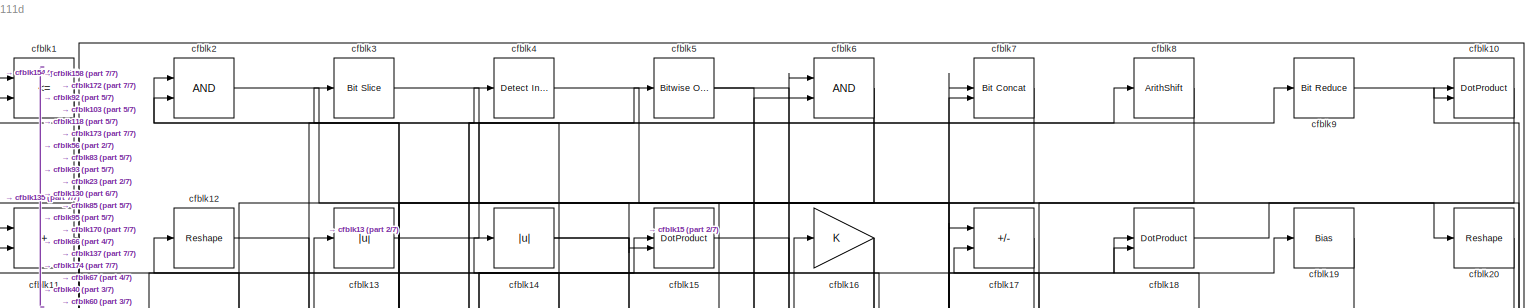
[diagram: root canvas - part 1/7, full width, top band]
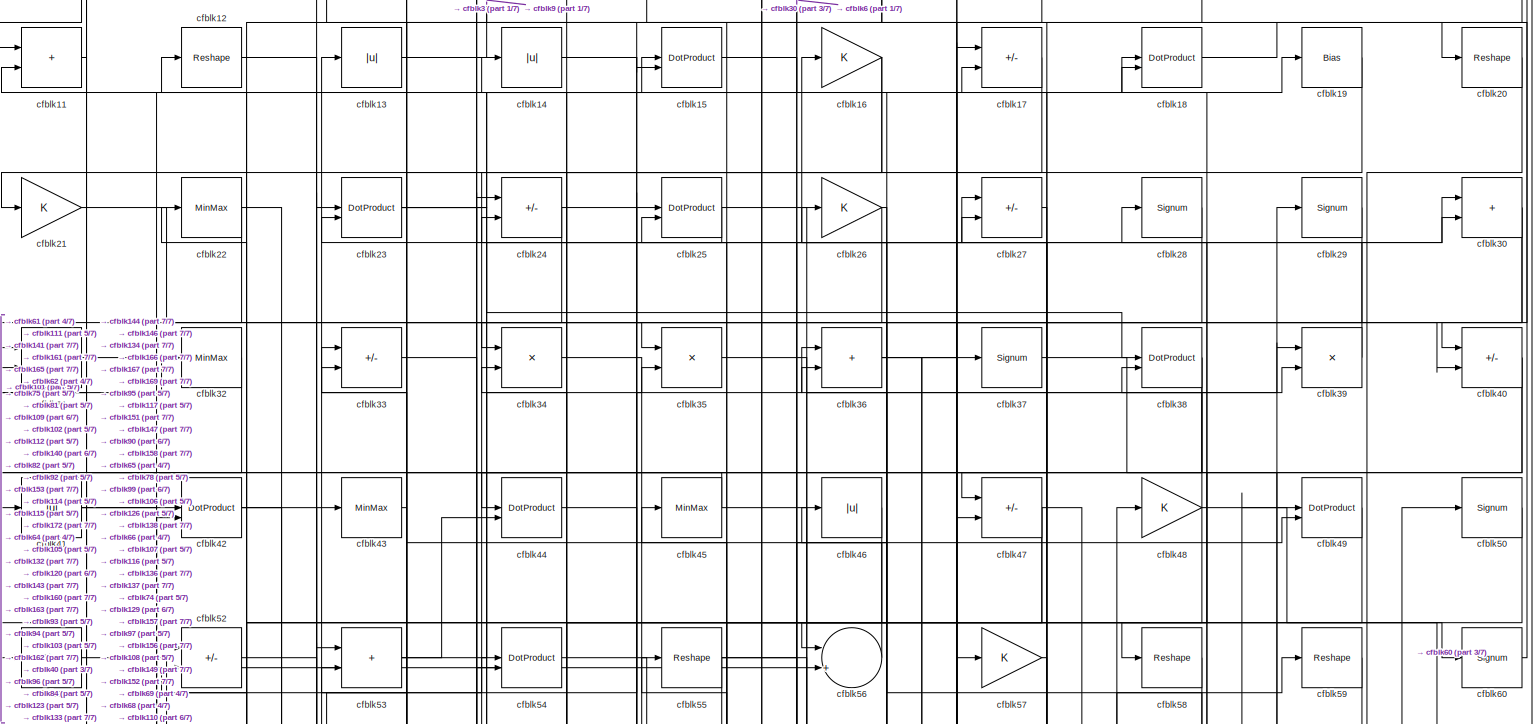
[diagram: root canvas - part 2/7, full width, top band]
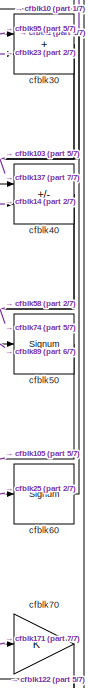
[diagram: root canvas - part 3/7, top right region]
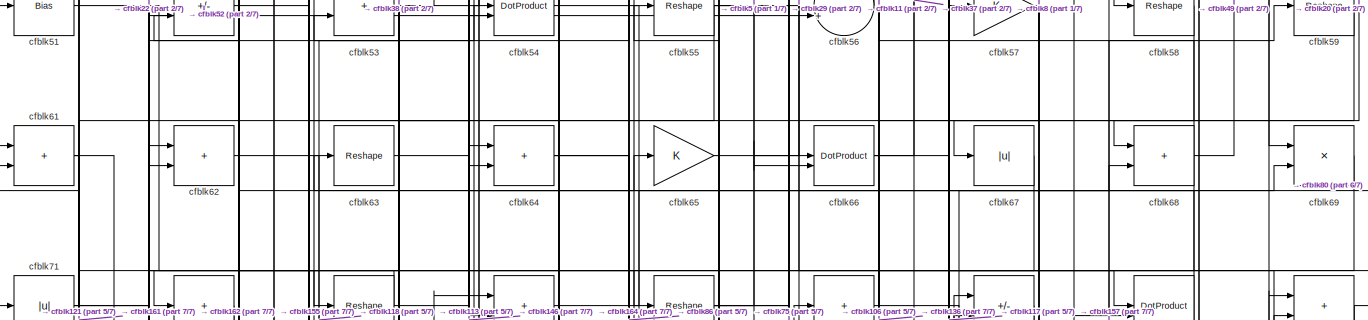
[diagram: root canvas - part 4/7, full width, middle band]
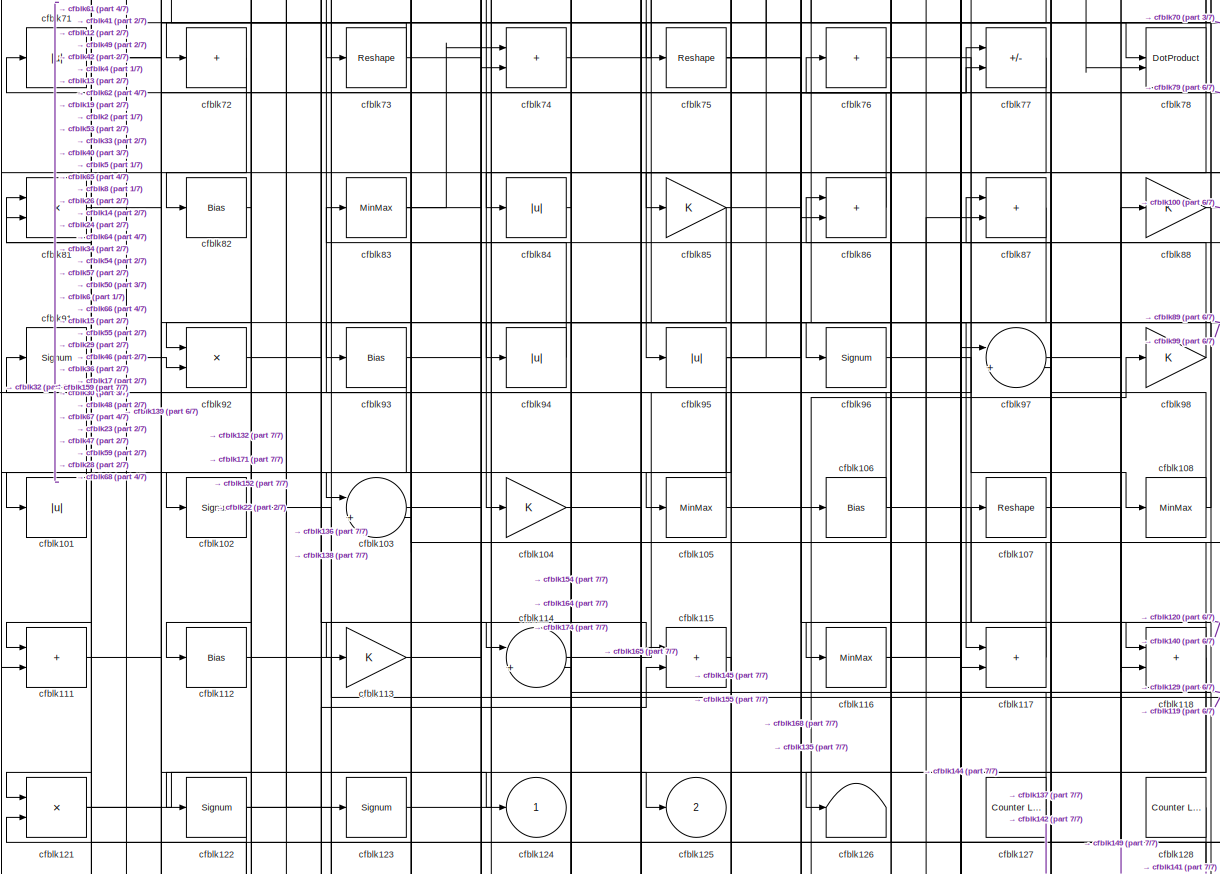
[diagram: root canvas - part 5/7, full width, middle band]
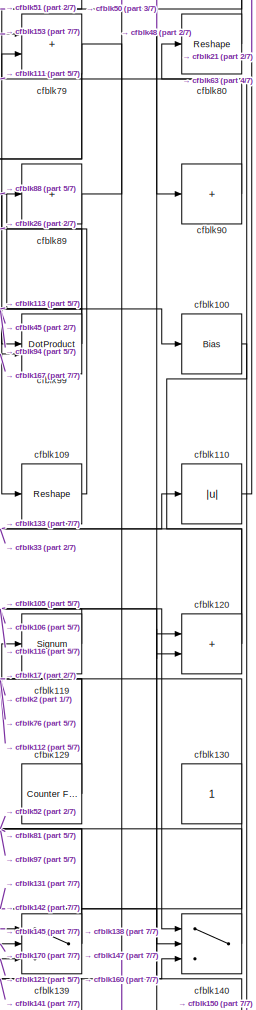
[diagram: root canvas - part 6/7, middle right region]
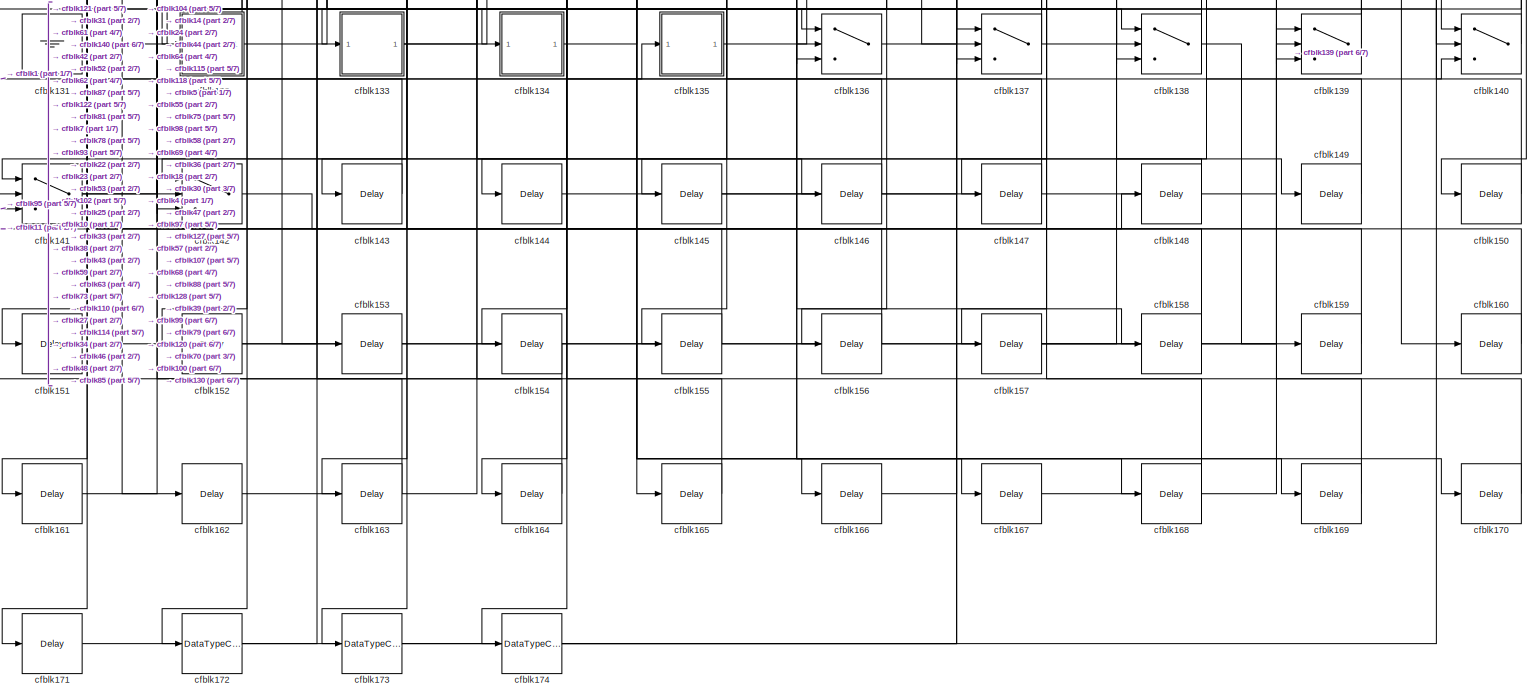
[diagram: root canvas - part 7/7, full width, bottom band]
MODEL slx_808a5f24111d
KIND model
CONFIG AbsTol = auto
CONFIG EnableMultiTasking = off
CONFIG FixedStep = auto
CONFIG MaxStep = auto
CONFIG MinStep = auto
CONFIG RelTol = 1e-3
CONFIG SampleTimeConstraint = Unconstrained
CONFIG SolverName = VariableStepAuto
CONFIG StartTime = 0.0
CONFIG StopTime = 10.0
BLOCK [RelationalOperator] cfblk1
  InputSameDT = off
  Operator = <=
  OutDataTypeStr = boolean
BLOCK [DotProduct] cfblk10
  OutDataTypeStr = Inherit: Inherit via internal rule
BLOCK [Bias] cfblk100
  Bias = 0.0
  SaturateOnIntegerOverflow = off
BLOCK [Abs] cfblk101
  SaturateOnIntegerOverflow = off
BLOCK [Signum] cfblk102
BLOCK [Sum] cfblk103
  Inputs = |++
BLOCK [Gain] cfblk104
BLOCK [MinMax] cfblk105
BLOCK [Bias] cfblk106
  Bias = 0.0
  SaturateOnIntegerOverflow = off
BLOCK [Reshape] cfblk107
BLOCK [MinMax] cfblk108
BLOCK [Reshape] cfblk109
BLOCK [Sum] cfblk11
  IconShape = rectangular
BLOCK [Abs] cfblk110
  SaturateOnIntegerOverflow = off
BLOCK [Sum] cfblk111
  IconShape = rectangular
BLOCK [Bias] cfblk112
  Bias = 0.0
  SaturateOnIntegerOverflow = off
BLOCK [Gain] cfblk113
BLOCK [Sum] cfblk114
  Inputs = |++
BLOCK [Sum] cfblk115
  IconShape = rectangular
BLOCK [MinMax] cfblk116
BLOCK [Sum] cfblk117
  IconShape = rectangular
BLOCK [Sum] cfblk118
  IconShape = rectangular
BLOCK [Signum] cfblk119
BLOCK [Reshape] cfblk12
BLOCK [Sum] cfblk120
  IconShape = rectangular
BLOCK [Product] cfblk121
  Inputs = */
  RndMeth = Zero
  SaturateOnIntegerOverflow = on
BLOCK [Signum] cfblk122
BLOCK [Signum] cfblk123
BLOCK [Outport] cfblk124
  VectorParamsAs1DForOutWhenUnconnected = off
BLOCK [Outport] cfblk125
  Port = 2
  VectorParamsAs1DForOutWhenUnconnected = off
BLOCK [Terminator] cfblk126
BLOCK [Reference] cfblk127  REF=hdlsllib/Sources/Counter
Limited
  SourceBlock = hdlsllib/Sources/Counter\nLimited
  SourceType = Counter Limited
BLOCK [Reference] cfblk128  REF=hdlsllib/Sources/Counter
Limited
  SourceBlock = hdlsllib/Sources/Counter\nLimited
  SourceType = Counter Limited
BLOCK [Reference] cfblk129  REF=hdlsllib/Sources/Counter
Free-Running
  SourceBlock = hdlsllib/Sources/Counter\nFree-Running
  SourceType = Counter Free-Running
BLOCK [Abs] cfblk13
  SaturateOnIntegerOverflow = off
BLOCK [Constant] cfblk130
  SampleTime = -1
BLOCK [Ground] cfblk131
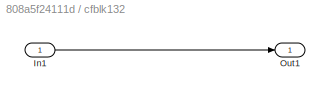
BLOCK [SubSystem] cfblk132
  LibrarySourceBlock = hdlsllib/Ports &\nSubsystems/Subsystem
BLOCK [Inport] cfblk132/In1
BLOCK [Outport] cfblk132/Out1
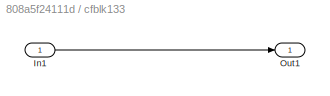
BLOCK [SubSystem] cfblk133
  LibrarySourceBlock = hdlsllib/Ports &\nSubsystems/Subsystem
BLOCK [Inport] cfblk133/In1
BLOCK [Outport] cfblk133/Out1
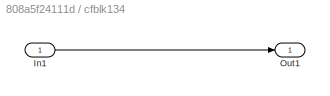
BLOCK [SubSystem] cfblk134
  LibrarySourceBlock = hdlsllib/Ports &\nSubsystems/Subsystem
BLOCK [Inport] cfblk134/In1
BLOCK [Outport] cfblk134/Out1
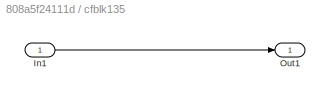
BLOCK [SubSystem] cfblk135
  LibrarySourceBlock = hdlsllib/Ports &\nSubsystems/Subsystem
BLOCK [Inport] cfblk135/In1
BLOCK [Outport] cfblk135/Out1
BLOCK [Switch] cfblk136
  InputSameDT = off
  SaturateOnIntegerOverflow = off
BLOCK [Switch] cfblk137
  InputSameDT = off
  SaturateOnIntegerOverflow = off
BLOCK [Switch] cfblk138
  InputSameDT = off
  SaturateOnIntegerOverflow = off
BLOCK [Switch] cfblk139
  InputSameDT = off
  SaturateOnIntegerOverflow = off
BLOCK [Abs] cfblk14
  SaturateOnIntegerOverflow = off
BLOCK [Switch] cfblk140
  InputSameDT = off
  SaturateOnIntegerOverflow = off
BLOCK [Switch] cfblk141
  InputSameDT = off
  SaturateOnIntegerOverflow = off
BLOCK [Switch] cfblk142
  InputSameDT = off
  SaturateOnIntegerOverflow = off
BLOCK [Delay] cfblk143
  InputPortMap = u0
  SampleTime = 1
BLOCK [Delay] cfblk144
  InputPortMap = u0
  SampleTime = 1
BLOCK [Delay] cfblk145
  InputPortMap = u0
  SampleTime = 1
BLOCK [Delay] cfblk146
  InputPortMap = u0
  SampleTime = 1
BLOCK [Delay] cfblk147
  InputPortMap = u0
  SampleTime = 1
BLOCK [Delay] cfblk148
  InputPortMap = u0
  SampleTime = 1
BLOCK [Delay] cfblk149
  InputPortMap = u0
  SampleTime = 1
BLOCK [DotProduct] cfblk15
  OutDataTypeStr = Inherit: Inherit via internal rule
BLOCK [Delay] cfblk150
  InputPortMap = u0
  SampleTime = 1
BLOCK [Delay] cfblk151
  InputPortMap = u0
  SampleTime = 1
BLOCK [Delay] cfblk152
  InputPortMap = u0
  SampleTime = 1
BLOCK [Delay] cfblk153
  InputPortMap = u0
  SampleTime = 1
BLOCK [Delay] cfblk154
  InputPortMap = u0
  SampleTime = 1
BLOCK [Delay] cfblk155
  InputPortMap = u0
  SampleTime = 1
BLOCK [Delay] cfblk156
  InputPortMap = u0
  SampleTime = 1
BLOCK [Delay] cfblk157
  InputPortMap = u0
  SampleTime = 1
BLOCK [Delay] cfblk158
  InputPortMap = u0
  SampleTime = 1
BLOCK [Delay] cfblk159
  InputPortMap = u0
  SampleTime = 1
BLOCK [Gain] cfblk16
BLOCK [Delay] cfblk160
  InputPortMap = u0
  SampleTime = 1
BLOCK [Delay] cfblk161
  InputPortMap = u0
  SampleTime = 1
BLOCK [Delay] cfblk162
  InputPortMap = u0
  SampleTime = 1
BLOCK [Delay] cfblk163
  InputPortMap = u0
  SampleTime = 1
BLOCK [Delay] cfblk164
  InputPortMap = u0
  SampleTime = 1
BLOCK [Delay] cfblk165
  InputPortMap = u0
  SampleTime = 1
BLOCK [Delay] cfblk166
  InputPortMap = u0
  SampleTime = 1
BLOCK [Delay] cfblk167
  InputPortMap = u0
  SampleTime = 1
BLOCK [Delay] cfblk168
  InputPortMap = u0
  SampleTime = 1
BLOCK [Delay] cfblk169
  InputPortMap = u0
  SampleTime = 1
BLOCK [Sum] cfblk17
  IconShape = rectangular
  Inputs = +-
BLOCK [Delay] cfblk170
  InputPortMap = u0
  SampleTime = 1
BLOCK [Delay] cfblk171
  InputPortMap = u0
  SampleTime = 1
BLOCK [DataTypeConversion] cfblk172
  OutDataTypeStr = uint8
  RndMeth = Floor
  SaturateOnIntegerOverflow = off
BLOCK [DataTypeConversion] cfblk173
  OutDataTypeStr = uint8
  RndMeth = Floor
  SaturateOnIntegerOverflow = off
BLOCK [DataTypeConversion] cfblk174
  OutDataTypeStr = uint8
  RndMeth = Floor
  SaturateOnIntegerOverflow = off
BLOCK [DotProduct] cfblk18
  OutDataTypeStr = Inherit: Inherit via internal rule
BLOCK [Bias] cfblk19
  Bias = 0.0
  SaturateOnIntegerOverflow = off
BLOCK [Logic] cfblk2
  AllPortsSameDT = off
  OutDataTypeStr = boolean
BLOCK [Reshape] cfblk20
BLOCK [Gain] cfblk21
BLOCK [MinMax] cfblk22
BLOCK [DotProduct] cfblk23
  OutDataTypeStr = Inherit: Inherit via internal rule
BLOCK [Sum] cfblk24
  IconShape = rectangular
  Inputs = +-
BLOCK [DotProduct] cfblk25
  OutDataTypeStr = Inherit: Inherit via internal rule
BLOCK [Gain] cfblk26
BLOCK [Sum] cfblk27
  IconShape = rectangular
  Inputs = +-
BLOCK [Signum] cfblk28
BLOCK [Signum] cfblk29
BLOCK [Reference] cfblk3  REF=hdlsllib/Logic and Bit
Operations/Bit Slice
  SourceBlock = hdlsllib/Logic and Bit\nOperations/Bit Slice
  SourceType = Bit Slice
BLOCK [Sum] cfblk30
  IconShape = rectangular
BLOCK [Sum] cfblk31
  IconShape = rectangular
BLOCK [MinMax] cfblk32
BLOCK [Sum] cfblk33
  IconShape = rectangular
  Inputs = +-
BLOCK [Product] cfblk34
  Inputs = */
  RndMeth = Zero
  SaturateOnIntegerOverflow = on
BLOCK [Product] cfblk35
  Inputs = */
  RndMeth = Zero
  SaturateOnIntegerOverflow = on
BLOCK [Sum] cfblk36
  IconShape = rectangular
BLOCK [Signum] cfblk37
BLOCK [DotProduct] cfblk38
  OutDataTypeStr = Inherit: Inherit via internal rule
BLOCK [Product] cfblk39
  Inputs = */
  RndMeth = Zero
  SaturateOnIntegerOverflow = on
BLOCK [Reference] cfblk4  REF=simulink/Logic and Bit
Operations/Detect
Increase
  LibrarySourceBlock = hdlsllib/Logic and Bit\nOperations/Detect\nIncrease
  SourceBlock = simulink/Logic and Bit\nOperations/Detect\nIncrease
  SourceType = Detect Increase
BLOCK [Sum] cfblk40
  IconShape = rectangular
  Inputs = +-
BLOCK [Abs] cfblk41
  SaturateOnIntegerOverflow = off
BLOCK [DotProduct] cfblk42
  OutDataTypeStr = Inherit: Inherit via internal rule
BLOCK [MinMax] cfblk43
BLOCK [DotProduct] cfblk44
  OutDataTypeStr = Inherit: Inherit via internal rule
BLOCK [MinMax] cfblk45
BLOCK [Abs] cfblk46
  SaturateOnIntegerOverflow = off
BLOCK [Sum] cfblk47
  IconShape = rectangular
  Inputs = +-
BLOCK [Gain] cfblk48
BLOCK [DotProduct] cfblk49
  OutDataTypeStr = Inherit: Inherit via internal rule
BLOCK [Reference] cfblk5  REF=simulink/Logic and Bit
Operations/Bitwise
Operator
  LibrarySourceBlock = hdlsllib/Logic and Bit\nOperations/Bitwise\nOperator
  SourceBlock = simulink/Logic and Bit\nOperations/Bitwise\nOperator
  SourceType = Bitwise Operator
BLOCK [Signum] cfblk50
BLOCK [Bias] cfblk51
  Bias = 0.0
  SaturateOnIntegerOverflow = off
BLOCK [Sum] cfblk52
  IconShape = rectangular
  Inputs = +-
BLOCK [Sum] cfblk53
  IconShape = rectangular
BLOCK [DotProduct] cfblk54
  OutDataTypeStr = Inherit: Inherit via internal rule
BLOCK [Reshape] cfblk55
BLOCK [Sum] cfblk56
  Inputs = |++
BLOCK [Gain] cfblk57
BLOCK [Reshape] cfblk58
BLOCK [Reshape] cfblk59
BLOCK [Logic] cfblk6
  AllPortsSameDT = off
  OutDataTypeStr = boolean
BLOCK [Signum] cfblk60
BLOCK [Sum] cfblk61
  IconShape = rectangular
BLOCK [Sum] cfblk62
  IconShape = rectangular
BLOCK [Reshape] cfblk63
BLOCK [Sum] cfblk64
  IconShape = rectangular
BLOCK [Gain] cfblk65
BLOCK [DotProduct] cfblk66
  OutDataTypeStr = Inherit: Inherit via internal rule
BLOCK [Abs] cfblk67
  SaturateOnIntegerOverflow = off
BLOCK [Sum] cfblk68
  IconShape = rectangular
BLOCK [Product] cfblk69
  Inputs = */
  RndMeth = Zero
  SaturateOnIntegerOverflow = on
BLOCK [Reference] cfblk7  REF=hdlsllib/Logic and Bit
Operations/Bit Concat
  SourceBlock = hdlsllib/Logic and Bit\nOperations/Bit Concat
  SourceType = Bit Concat
BLOCK [Gain] cfblk70
BLOCK [Abs] cfblk71
  SaturateOnIntegerOverflow = off
BLOCK [Sum] cfblk72
  IconShape = rectangular
  Inputs = +
BLOCK [Reshape] cfblk73
BLOCK [Sum] cfblk74
  IconShape = rectangular
BLOCK [Reshape] cfblk75
BLOCK [Sum] cfblk76
  IconShape = rectangular
  Inputs = +
BLOCK [Sum] cfblk77
  IconShape = rectangular
  Inputs = +-
BLOCK [DotProduct] cfblk78
  OutDataTypeStr = Inherit: Inherit via internal rule
BLOCK [Sum] cfblk79
  IconShape = rectangular
BLOCK [ArithShift] cfblk8
  BitShiftNumber = 8
  InputPortMap = u0
BLOCK [Reshape] cfblk80
BLOCK [Product] cfblk81
  Inputs = */
  RndMeth = Zero
  SaturateOnIntegerOverflow = on
BLOCK [Bias] cfblk82
  Bias = 0.0
  SaturateOnIntegerOverflow = off
BLOCK [MinMax] cfblk83
BLOCK [Abs] cfblk84
  SaturateOnIntegerOverflow = off
BLOCK [Gain] cfblk85
BLOCK [Sum] cfblk86
  IconShape = rectangular
BLOCK [Sum] cfblk87
  IconShape = rectangular
BLOCK [Gain] cfblk88
BLOCK [Sum] cfblk89
  IconShape = rectangular
  Inputs = +
BLOCK [Reference] cfblk9  REF=hdlsllib/Logic and Bit
Operations/Bit Reduce
  SourceBlock = hdlsllib/Logic and Bit\nOperations/Bit Reduce
  SourceType = Bit Reduce
BLOCK [Sum] cfblk90
  IconShape = rectangular
  Inputs = +
BLOCK [Signum] cfblk91
BLOCK [Product] cfblk92
  Inputs = */
  RndMeth = Zero
  SaturateOnIntegerOverflow = on
BLOCK [Bias] cfblk93
  Bias = 0.0
  SaturateOnIntegerOverflow = off
BLOCK [Abs] cfblk94
  SaturateOnIntegerOverflow = off
BLOCK [Abs] cfblk95
  SaturateOnIntegerOverflow = off
BLOCK [Signum] cfblk96
BLOCK [Sum] cfblk97
  Inputs = |++
BLOCK [Gain] cfblk98
BLOCK [DotProduct] cfblk99
  OutDataTypeStr = Inherit: Inherit via internal rule
LINE cfblk100:1 -> cfblk150:1
LINE cfblk101:1 -> cfblk32:1
LINE cfblk102:1 -> cfblk136:2
LINE cfblk103:1 -> cfblk54:2
LINE cfblk104:1 -> cfblk165:1
NET cfblk105:1 -> cfblk120:2, cfblk13:1
NET cfblk106:1 -> cfblk140:1, cfblk46:1, cfblk61:2
NET cfblk107:1 -> cfblk149:1, cfblk87:1
NET cfblk108:1 -> cfblk23:2, cfblk28:1
LINE cfblk109:1 -> cfblk89:1
LINE cfblk10:1 -> cfblk173:1
LINE cfblk110:1 -> cfblk21:1
LINE cfblk111:1 -> cfblk79:2
LINE cfblk112:1 -> cfblk119:1
LINE cfblk113:1 -> cfblk65:1
NET cfblk114:1 -> cfblk174:1, cfblk48:1
LINE cfblk115:1 -> cfblk145:1
NET cfblk116:1 -> cfblk17:1, cfblk87:2
LINE cfblk117:1 -> cfblk91:1
NET cfblk118:1 -> cfblk154:1, cfblk155:1, cfblk2:1
LINE cfblk119:1 -> cfblk116:1
LINE cfblk11:1 -> cfblk51:1
NET cfblk120:1 -> cfblk33:1, cfblk80:1
NET cfblk121:1 -> cfblk124:1, cfblk139:3
NET cfblk122:1 -> cfblk115:2, cfblk138:1, cfblk171:1
LINE cfblk123:1 -> cfblk15:1
NET cfblk127:1 -> cfblk142:2, cfblk86:1
LINE cfblk128:1 -> cfblk141:2
NET cfblk129:1 -> cfblk17:2, cfblk76:1
LINE cfblk12:1 -> cfblk114:1
NET cfblk130:1 -> cfblk142:1, cfblk2:2
LINE cfblk131:1 -> cfblk140:2
LINE cfblk132/In1:1 -> cfblk132/Out1:1
NET cfblk132:1 -> cfblk25:1, cfblk81:1
LINE cfblk133/In1:1 -> cfblk133/Out1:1
NET cfblk133:1 -> cfblk110:1, cfblk27:1
LINE cfblk134/In1:1 -> cfblk134/Out1:1
LINE cfblk134:1 -> cfblk36:1
LINE cfblk135/In1:1 -> cfblk135/Out1:1
LINE cfblk135:1 -> cfblk98:1
LINE cfblk136:1 -> cfblk18:1
NET cfblk137:1 -> cfblk55:1, cfblk88:1
NET cfblk138:1 -> cfblk159:1, cfblk36:2
NET cfblk139:1 -> cfblk81:2, cfblk97:2
LINE cfblk13:1 -> cfblk9:1
LINE cfblk140:1 -> cfblk52:2
NET cfblk141:1 -> cfblk140:3, cfblk42:1
LINE cfblk142:1 -> cfblk148:1
LINE cfblk143:1 -> cfblk31:2
LINE cfblk144:1 -> cfblk97:1
LINE cfblk145:1 -> cfblk139:1
LINE cfblk146:1 -> cfblk34:2
LINE cfblk147:1 -> cfblk25:2
LINE cfblk148:1 -> cfblk141:1
LINE cfblk149:1 -> cfblk18:2
NET cfblk14:1 -> cfblk167:1, cfblk40:2
LINE cfblk150:1 -> cfblk120:1
LINE cfblk151:1 -> cfblk53:1
LINE cfblk152:1 -> cfblk39:1
LINE cfblk153:1 -> cfblk79:1
LINE cfblk154:1 -> cfblk1:1
LINE cfblk155:1 -> cfblk62:1
LINE cfblk156:1 -> cfblk11:1
LINE cfblk157:1 -> cfblk68:2
LINE cfblk158:1 -> cfblk1:2
LINE cfblk159:1 -> cfblk121:2
LINE cfblk15:1 -> cfblk106:1
LINE cfblk160:1 -> cfblk33:2
LINE cfblk161:1 -> cfblk42:2
LINE cfblk162:1 -> cfblk24:1
LINE cfblk163:1 -> cfblk23:1
LINE cfblk164:1 -> cfblk64:1
LINE cfblk165:1 -> cfblk52:1
LINE cfblk166:1 -> cfblk47:2
LINE cfblk167:1 -> cfblk99:2
LINE cfblk168:1 -> cfblk114:2
LINE cfblk169:1 -> cfblk27:2
NET cfblk16:1 -> cfblk34:1, cfblk44:1
LINE cfblk170:1 -> cfblk139:2
LINE cfblk171:1 -> cfblk70:1
LINE cfblk172:1 -> cfblk43:1
LINE cfblk173:1 -> cfblk7:1
LINE cfblk174:1 -> cfblk7:2
LINE cfblk17:1 -> cfblk31:1
LINE cfblk18:1 -> cfblk20:1
LINE cfblk19:1 -> cfblk93:1
LINE cfblk1:1 -> cfblk135:1
LINE cfblk20:1 -> cfblk68:1
LINE cfblk21:1 -> cfblk35:1
NET cfblk22:1 -> cfblk153:1, cfblk62:2
NET cfblk23:1 -> cfblk30:2, cfblk38:1, cfblk6:1
NET cfblk24:1 -> cfblk169:1, cfblk82:1
NET cfblk25:1 -> cfblk24:2, cfblk60:1
NET cfblk26:1 -> cfblk56:1, cfblk84:1
LINE cfblk27:1 -> cfblk47:1
LINE cfblk28:1 -> cfblk101:1
LINE cfblk29:1 -> cfblk126:1
LINE cfblk2:1 -> cfblk40:1
NET cfblk30:1 -> cfblk103:2, cfblk137:3
LINE cfblk31:1 -> cfblk19:1
LINE cfblk32:1 -> cfblk111:1
LINE cfblk33:1 -> cfblk96:1
LINE cfblk34:1 -> cfblk95:1
LINE cfblk35:1 -> cfblk39:2
NET cfblk36:1 -> cfblk107:1, cfblk137:2
LINE cfblk37:1 -> cfblk69:1
NET cfblk38:1 -> cfblk163:1, cfblk61:1
LINE cfblk39:1 -> cfblk16:1
LINE cfblk3:1 -> cfblk15:2
NET cfblk40:1 -> cfblk58:1, cfblk74:2
NET cfblk41:1 -> cfblk56:2, cfblk75:1
NET cfblk42:1 -> cfblk115:1, cfblk123:1
LINE cfblk43:1 -> cfblk143:1
LINE cfblk44:1 -> cfblk166:1
NET cfblk45:1 -> cfblk41:1, cfblk99:1
LINE cfblk46:1 -> cfblk134:1
NET cfblk47:1 -> cfblk102:1, cfblk112:1, cfblk78:2
NET cfblk48:1 -> cfblk144:1, cfblk38:2, cfblk90:1
LINE cfblk49:1 -> cfblk92:1
LINE cfblk4:1 -> cfblk137:1
LINE cfblk50:1 -> cfblk105:1
LINE cfblk51:1 -> cfblk109:1
LINE cfblk52:1 -> cfblk64:2
NET cfblk53:1 -> cfblk35:2, cfblk44:2
LINE cfblk54:1 -> cfblk117:1
NET cfblk55:1 -> cfblk151:1, cfblk158:1, cfblk78:1
LINE cfblk56:1 -> cfblk3:1
LINE cfblk57:1 -> cfblk157:1
LINE cfblk58:1 -> cfblk156:1
LINE cfblk59:1 -> cfblk133:1
NET cfblk5:1 -> cfblk170:1, cfblk66:2
LINE cfblk60:1 -> cfblk10:1
NET cfblk61:1 -> cfblk161:1, cfblk162:1
LINE cfblk62:1 -> cfblk118:2
LINE cfblk63:1 -> cfblk146:1
NET cfblk64:1 -> cfblk136:3, cfblk86:2
LINE cfblk65:1 -> cfblk29:1
NET cfblk66:1 -> cfblk37:1, cfblk69:2
LINE cfblk67:1 -> cfblk121:1
NET cfblk68:1 -> cfblk117:2, cfblk11:2, cfblk49:1
LINE cfblk69:1 -> cfblk136:1
NET cfblk6:1 -> cfblk103:1, cfblk85:1
LINE cfblk70:1 -> cfblk122:1
NET cfblk71:1 -> cfblk125:1, cfblk73:1
LINE cfblk72:1 -> cfblk111:2
NET cfblk73:1 -> cfblk138:2, cfblk72:1
LINE cfblk74:1 -> cfblk57:1
NET cfblk75:1 -> cfblk168:1, cfblk66:1, cfblk77:2
LINE cfblk76:1 -> cfblk118:1
LINE cfblk77:1 -> cfblk104:1
NET cfblk78:1 -> cfblk152:1, cfblk22:1
NET cfblk79:1 -> cfblk138:3, cfblk147:1, cfblk160:1
LINE cfblk7:1 -> cfblk172:1
LINE cfblk80:1 -> cfblk63:1
LINE cfblk81:1 -> cfblk54:1
LINE cfblk82:1 -> cfblk12:1
NET cfblk83:1 -> cfblk74:1, cfblk8:1
LINE cfblk84:1 -> cfblk14:1
NET cfblk85:1 -> cfblk164:1, cfblk77:1
LINE cfblk86:1 -> cfblk71:1
LINE cfblk87:1 -> cfblk142:3
LINE cfblk88:1 -> cfblk100:1
NET cfblk89:1 -> cfblk113:1, cfblk50:1
LINE cfblk8:1 -> cfblk67:1
LINE cfblk90:1 -> cfblk45:1
LINE cfblk91:1 -> cfblk92:2
LINE cfblk92:1 -> cfblk4:1
NET cfblk93:1 -> cfblk132:1, cfblk5:1
LINE cfblk94:1 -> cfblk53:2
NET cfblk95:1 -> cfblk141:3, cfblk30:1, cfblk49:2, cfblk6:2
LINE cfblk96:1 -> cfblk108:1
LINE cfblk97:1 -> cfblk59:1
LINE cfblk98:1 -> cfblk83:1
NET cfblk99:1 -> cfblk26:1, cfblk94:1
LINE cfblk9:1 -> cfblk10:2
note: NET lines group one-source signal fan-out (src -> all destinations, sorted); 1:1 wires keep LINE
